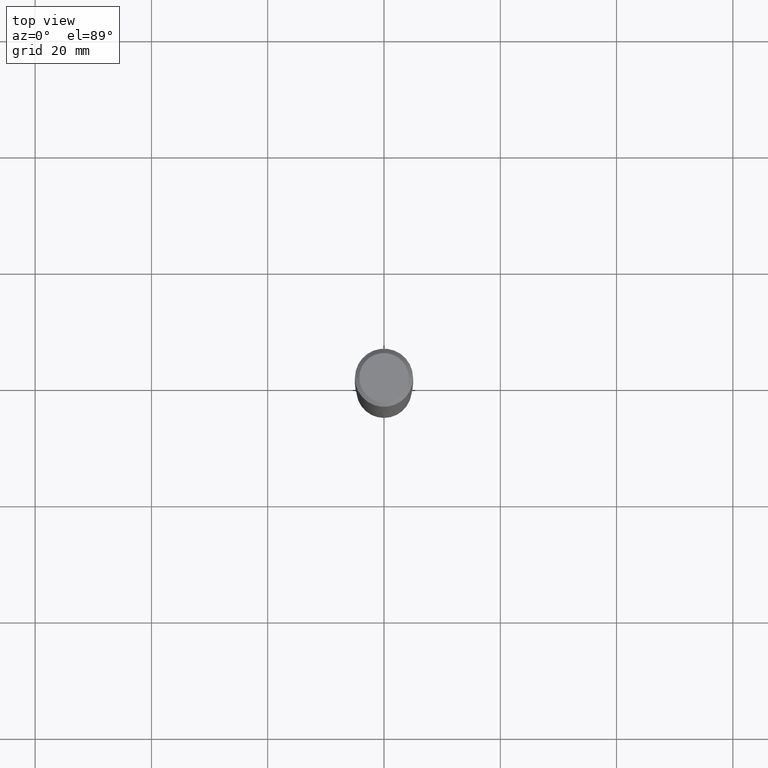
[diagram: clean part render]
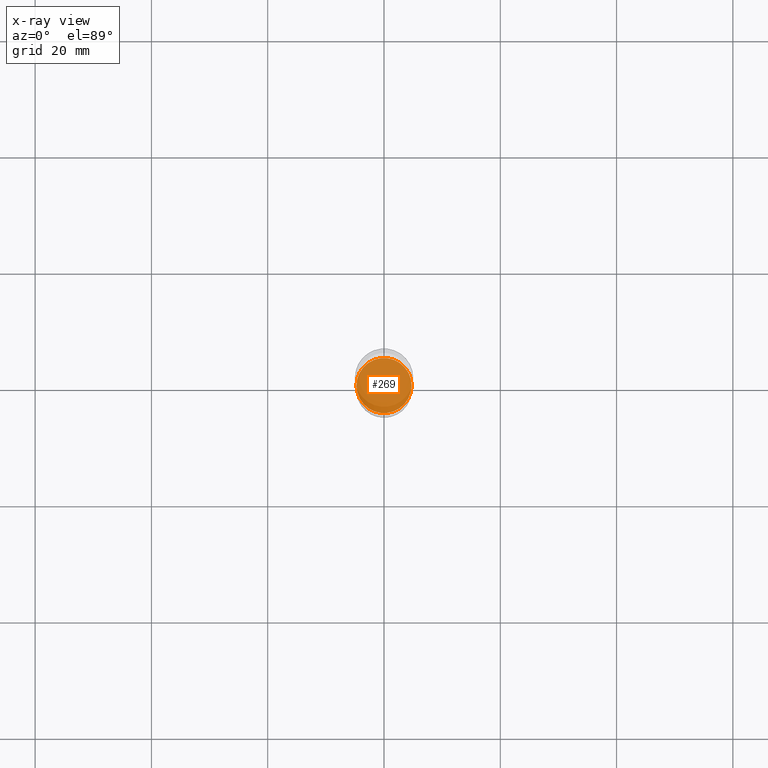
[diagram: x-ray — body ghosted, one internal face saturated and labeled with its STEP entity id]
A machine part, top view, then the same camera in x-ray: the body is ghosted and one INTERNAL B-rep face — a face not visible from any outside direction — is saturated and labeled: STEP entity #269.
In plain terms, the highlighted planar face has unit normal (-0, 0, 1).
Its self-contained STEP definition (entity closure, byte-faithful):
#44 = VERTEX_POINT ( 'NONE', #61 ) ;
#51 = ORIENTED_EDGE ( 'NONE', *, *, #232, .F. ) ;
#61 = CARTESIAN_POINT ( 'NONE',  ( -0.1864999999999999991, -9.461913352060273689E-15, -3.090299999999999603 ) ) ;
#78 = VERTEX_POINT ( 'NONE', #92 ) ;
#89 = EDGE_CURVE ( 'NONE', #78, #44, #394, .T. ) ;
#92 = CARTESIAN_POINT ( 'NONE',  ( 0.1864999999999999991, -1.209204732081546072E-14, -3.090299999999999603 ) ) ;
#109 = DIRECTION ( 'NONE',  ( 1.000000000000000000, -6.982962677686268288E-15, 0.000000000000000000 ) ) ;
#126 = ORIENTED_EDGE ( 'NONE', *, *, #89, .F. ) ;
#163 = DIRECTION ( 'NONE',  ( 1.000000000000000000, -6.982962677686268288E-15, 0.000000000000000000 ) ) ;
#190 = CIRCLE ( 'NONE', #388, 0.1864999999999999991 ) ;
#202 = CARTESIAN_POINT ( 'NONE',  ( 7.557232251753925568E-29, -1.078972478142697173E-14, -3.090299999999999603 ) ) ;
#220 = CARTESIAN_POINT ( 'NONE',  ( 7.557232251753925568E-29, -1.078972478142697173E-14, -3.090299999999999603 ) ) ;
#232 = EDGE_CURVE ( 'NONE', #44, #78, #190, .T. ) ;
#254 = PLANE ( 'NONE',  #289 ) ;
#260 = DIRECTION ( 'NONE',  ( -2.438088387897960049E-29, 3.491481338843145188E-15, 1.000000000000000000 ) ) ;
#269 = ADVANCED_FACE ( 'NONE', ( #434 ), #254, .F. ) ;
#289 = AXIS2_PLACEMENT_3D ( 'NONE', #365, #260, #401 ) ;
#347 = DIRECTION ( 'NONE',  ( -2.445468806185136597E-29, 3.491481338843145583E-15, 1.000000000000000000 ) ) ;
#365 = CARTESIAN_POINT ( 'NONE',  ( 7.557232251753925568E-29, -1.078972478142697173E-14, -3.090299999999999603 ) ) ;
#388 = AXIS2_PLACEMENT_3D ( 'NONE', #220, #433, #109 ) ;
#394 = CIRCLE ( 'NONE', #460, 0.1864999999999999991 ) ;
#401 = DIRECTION ( 'NONE',  ( 1.000000000000000000, -6.982962677686265922E-15, 4.876176775795935793E-29 ) ) ;
#418 = EDGE_LOOP ( 'NONE', ( #126, #51 ) ) ;
#433 = DIRECTION ( 'NONE',  ( -2.445468806185136597E-29, 3.491481338843145583E-15, 1.000000000000000000 ) ) ;
#434 = FACE_OUTER_BOUND ( 'NONE', #418, .T. ) ;
#460 = AXIS2_PLACEMENT_3D ( 'NONE', #202, #347, #163 ) ;